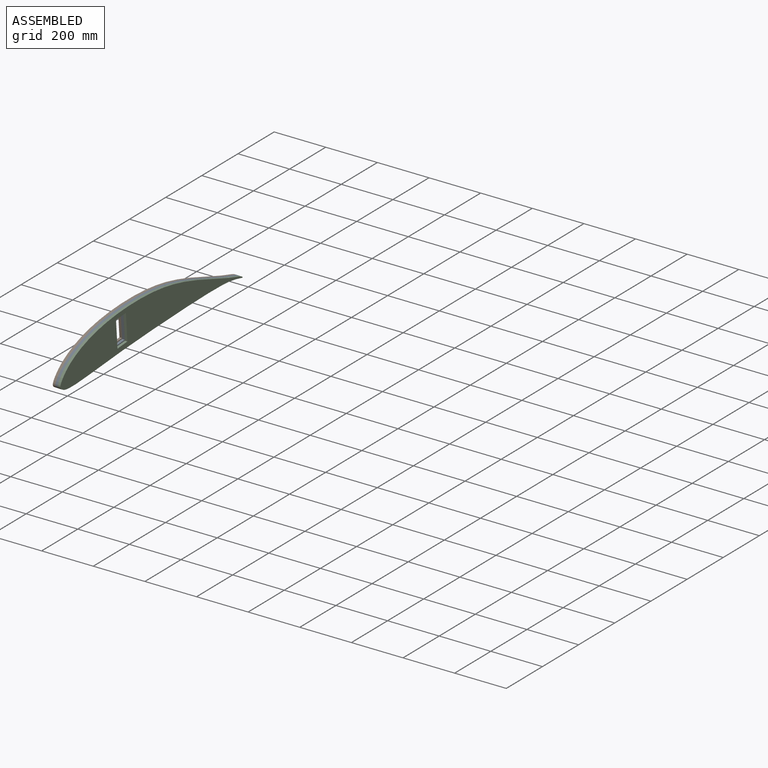
[diagram: assembled view]
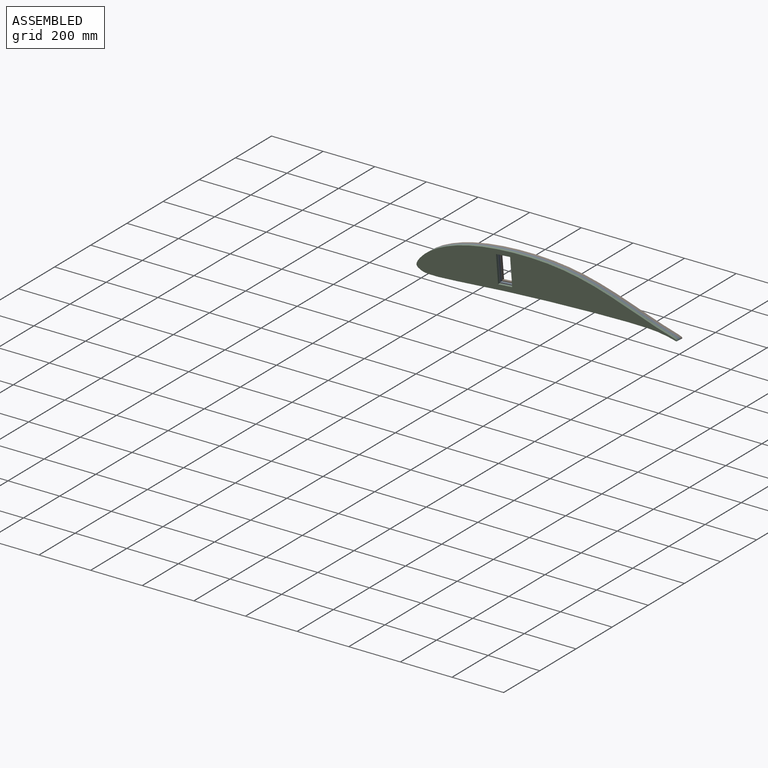
[diagram: assembled view, second angle]
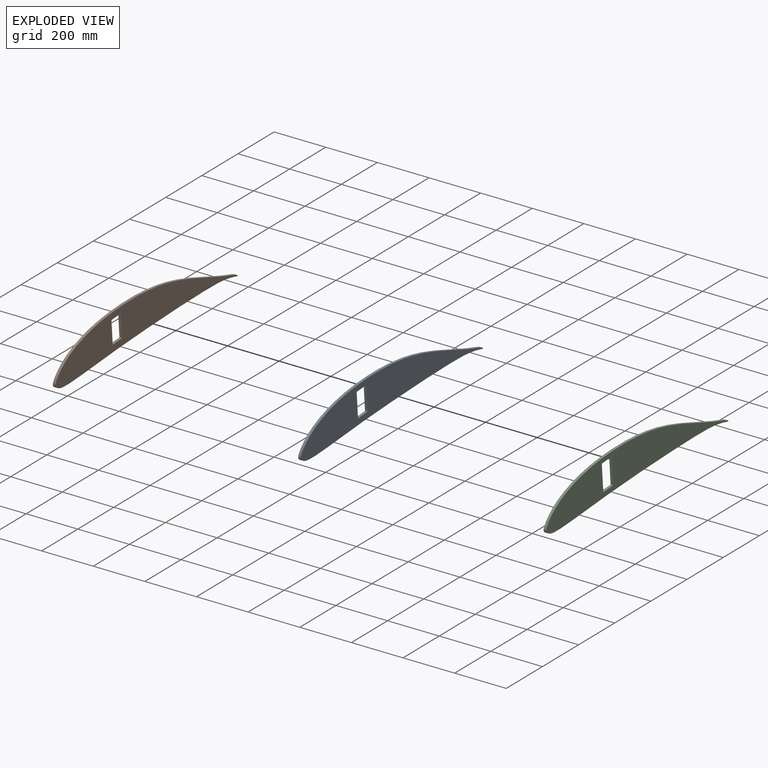
[diagram: exploded view]
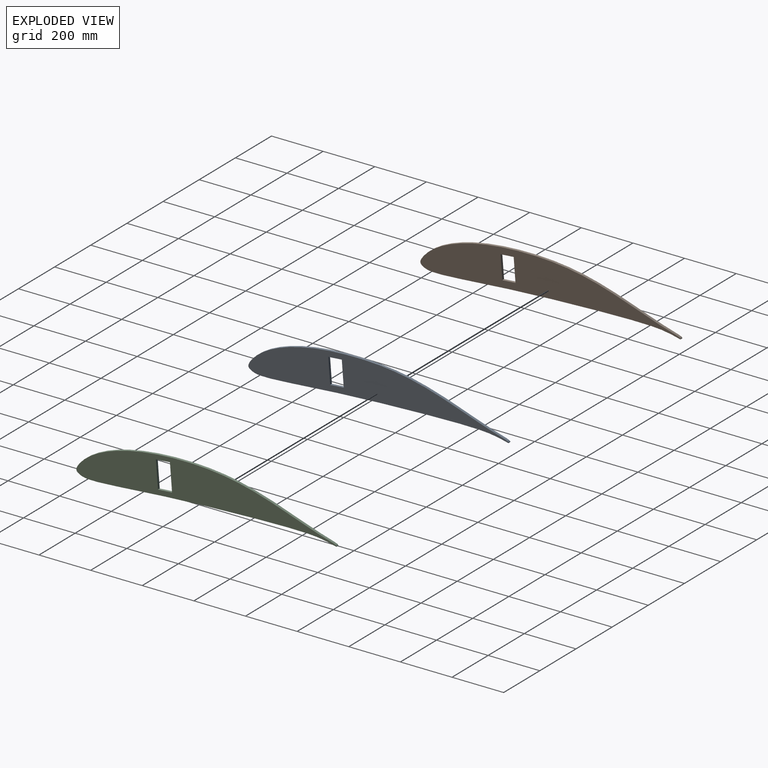
[diagram: exploded view, second angle]
ASSEMBLY  parts=3 mates=2
PART A: 7 faces, bbox 6000x1008.6x165.9 mm
  f0: bspline ~6000x59.4mm, area 529.2mm2, adj f1,f3,f4,f5
  f1: bspline ~6000x107.67mm, area 963.8mm2, adj f0,f2,f4,f5
  f2: bspline ~6000x59.4mm, area 529.2mm2, adj f1,f3,f4,f5
  f3: bspline ~6000x107.67mm, area 963.8mm2, adj f0,f2,f4,f5
  f4: plane 1008.3x163.24mm, normal (1,0,0), area 91115mm2, adj f0,f1,f2,f3,f6
  f5: plane 1008.3x163.24mm, normal (-1,0,0), area 91106.5mm2, adj f0,f1,f2,f3,f6
  f6: bspline ~2000x1008.61mm, area 20939.4mm2, adj f4,f5
PART B: 7 faces, bbox 6000x1008.6x165.9 mm
  f0: bspline ~6000x59.4mm, area 514.5mm2, adj f1,f3,f4,f5
  f1: bspline ~6000x107.67mm, area 893.1mm2, adj f0,f2,f4,f5
  f2: bspline ~6000x59.4mm, area 514.5mm2, adj f1,f3,f4,f5
  f3: bspline ~6000x107.67mm, area 893.1mm2, adj f0,f2,f4,f5
  f4: plane 1008.3x163.24mm, normal (1,0,0), area 91619.3mm2, adj f0,f1,f2,f3,f6
  f5: plane 1008.3x163.24mm, normal (-1,0,0), area 91612.6mm2, adj f0,f1,f2,f3,f6
  f6: bspline ~2000x1008.61mm, area 20939.4mm2, adj f4,f5
PART C: 7 faces, bbox 6000x1008.6x165.9 mm
  f0: bspline ~6000x59.4mm, area 549mm2, adj f1,f3,f4,f5
  f1: bspline ~6000x107.67mm, area 1039.9mm2, adj f0,f2,f4,f5
  f2: bspline ~6000x59.4mm, area 549mm2, adj f1,f3,f4,f5
  f3: bspline ~6000x107.67mm, area 1039.9mm2, adj f0,f2,f4,f5
  f4: plane 1008.3x163.24mm, normal (1,0,0), area 90706.4mm2, adj f0,f1,f2,f3,f6
  f5: plane 1008.3x163.24mm, normal (-1,0,0), area 90696.6mm2, adj f0,f1,f2,f3,f6
  f6: bspline ~2000x1008.61mm, area 20939.4mm2, adj f4,f5
PLACE A t=(-1824.96,857.84,-320.43)mm
PLACE B t=(-2494.96,858.3,-320.49)mm
PLACE C t=(-1154.96,857.28,-320.35)mm
MATE fastened C.f5 <-> A.f4  axis (-1,0,0) through (-819.96,796.74,-270.62)mm
MATE fastened B.f4 <-> A.f5  axis (1,0,0) through (-829.96,796.74,-270.62)mm
